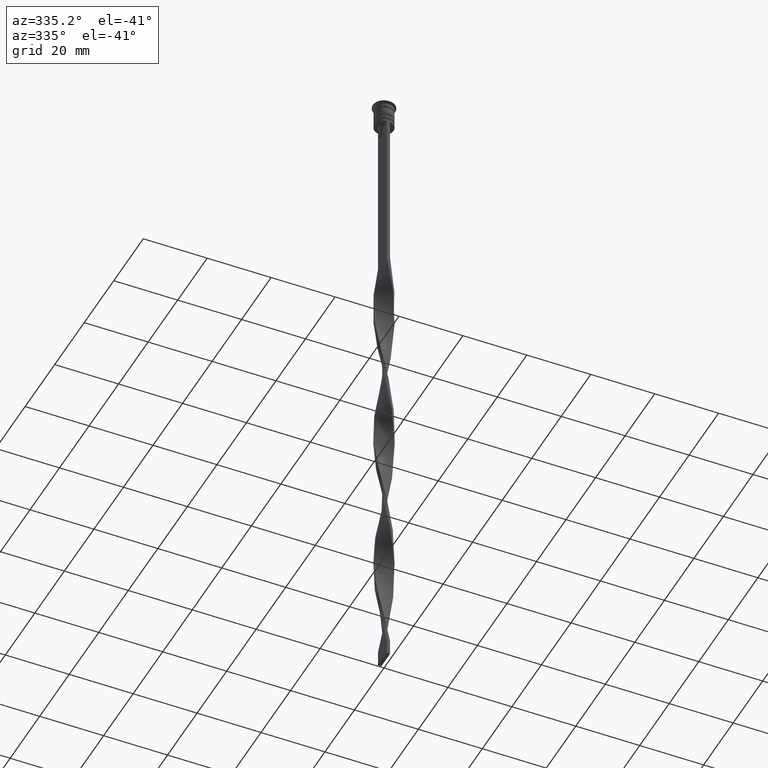
[diagram: clean part render]
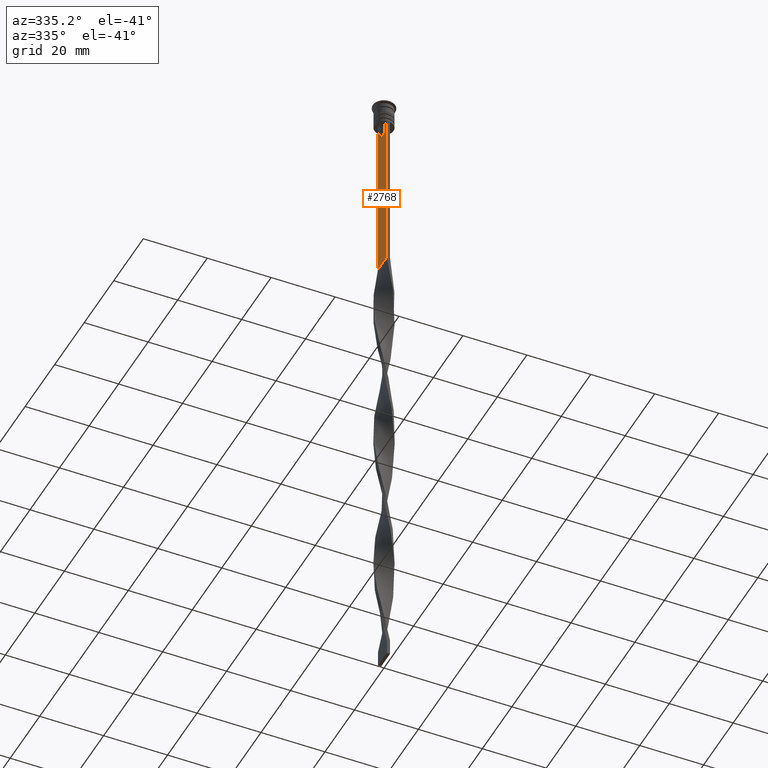
[diagram: same view with one face highlighted and labeled with its STEP entity id]
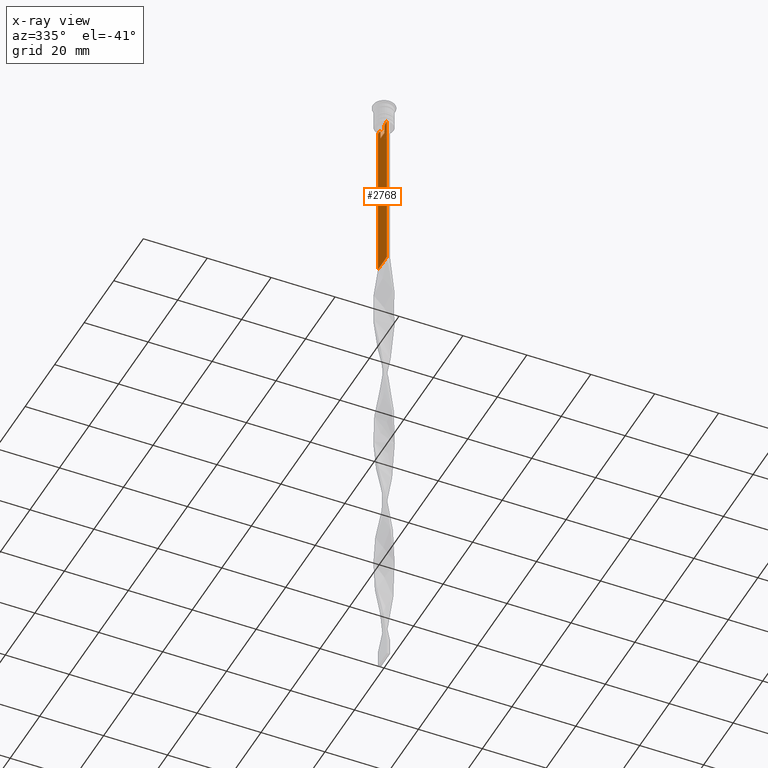
[diagram: x-ray of the same camera — body ghosted, the highlighted face saturated]
A machine part, auxiliary view. The second image highlights one B-rep face of the part: STEP entity #2768.
The next image is the same camera in x-ray: the body ghosted, the highlighted face saturated — about 0% of this face is hidden behind the body in this view.
In plain terms, the highlighted planar face has unit normal (-1, 0, 0).
Its self-contained STEP definition (entity closure, byte-faithful):
#13 = EDGE_CURVE ( 'NONE', #152, #3403, #2100, .T. ) ;
#27 = ORIENTED_EDGE ( 'NONE', *, *, #690, .F. ) ;
#32 = VECTOR ( 'NONE', #1371, 1000.000000000000000 ) ;
#92 = CARTESIAN_POINT ( 'NONE',  ( -0.5000000000000001110, 3.000000000000000000, -58.50000000000000000 ) ) ;
#152 = VERTEX_POINT ( 'NONE', #542 ) ;
#168 = CARTESIAN_POINT ( 'NONE',  ( -0.5000000000000001110, -3.000000000000000000, -7.500000000000000000 ) ) ;
#191 = VECTOR ( 'NONE', #637, 1000.000000000000000 ) ;
#220 = LINE ( 'NONE', #1954, #32 ) ;
#280 = DIRECTION ( 'NONE',  ( -0.000000000000000000, -0.000000000000000000, 1.000000000000000000 ) ) ;
#340 = EDGE_CURVE ( 'NONE', #1937, #1927, #3247, .T. ) ;
#386 = VECTOR ( 'NONE', #2576, 1000.000000000000000 ) ;
#388 = VECTOR ( 'NONE', #3270, 1000.000000000000000 ) ;
#414 = ORIENTED_EDGE ( 'NONE', *, *, #881, .F. ) ;
#427 = EDGE_LOOP ( 'NONE', ( #3680, #461, #852, #2787, #3005, #2536, #27, #3703, #414, #1494, #918, #3365 ) ) ;
#441 = DIRECTION ( 'NONE',  ( 0.000000000000000000, -1.000000000000000000, 0.000000000000000000 ) ) ;
#461 = ORIENTED_EDGE ( 'NONE', *, *, #1037, .F. ) ;
#480 = LINE ( 'NONE', #1028, #2305 ) ;
#481 = CARTESIAN_POINT ( 'NONE',  ( -0.5000000000000001110, -1.659011726860414093, -7.667884880598472286 ) ) ;
#538 = EDGE_CURVE ( 'NONE', #3403, #2947, #480, .T. ) ;
#542 = CARTESIAN_POINT ( 'NONE',  ( -0.5000000000000001110, 1.833030277982335532, -7.500000000000000000 ) ) ;
#637 = DIRECTION ( 'NONE',  ( 0.000000000000000000, 0.000000000000000000, -1.000000000000000000 ) ) ;
#690 = EDGE_CURVE ( 'NONE', #1698, #1590, #3396, .T. ) ;
#749 = LINE ( 'NONE', #1872, #1838 ) ;
#771 = VERTEX_POINT ( 'NONE', #795 ) ;
#795 = CARTESIAN_POINT ( 'NONE',  ( -0.5000000000000001110, -1.307669683062199217, -8.000000000000000000 ) ) ;
#852 = ORIENTED_EDGE ( 'NONE', *, *, #1595, .F. ) ;
#869 = VECTOR ( 'NONE', #3651, 1000.000000000000000 ) ;
#871 = VECTOR ( 'NONE', #1154, 1000.000000000000000 ) ;
#881 = EDGE_CURVE ( 'NONE', #771, #1372, #1400, .T. ) ;
#918 = ORIENTED_EDGE ( 'NONE', *, *, #2335, .F. ) ;
#928 = PLANE ( 'NONE',  #2734 ) ;
#953 = CARTESIAN_POINT ( 'NONE',  ( -0.5000000000000001110, 1.307669683062199217, -8.000000000000000000 ) ) ;
#1028 = CARTESIAN_POINT ( 'NONE',  ( -0.5000000000000001110, 1.307669683062199217, 0.000000000000000000 ) ) ;
#1037 = EDGE_CURVE ( 'NONE', #3150, #152, #3042, .T. ) ;
#1049 = CARTESIAN_POINT ( 'NONE',  ( -0.5000000000000001110, 3.000000000000000000, -7.500000000000000000 ) ) ;
#1084 = CARTESIAN_POINT ( 'NONE',  ( -0.5000000000000001110, -1.484307477388859153, -7.835011508197190722 ) ) ;
#1154 = DIRECTION ( 'NONE',  ( 0.000000000000000000, -1.000000000000000000, 0.000000000000000000 ) ) ;
#1195 = EDGE_CURVE ( 'NONE', #1370, #1927, #3325, .T. ) ;
#1213 = VECTOR ( 'NONE', #441, 1000.000000000000000 ) ;
#1282 = CARTESIAN_POINT ( 'NONE',  ( -0.5000000000000001110, -3.000000000000000000, -7.500000000000000000 ) ) ;
#1315 = CARTESIAN_POINT ( 'NONE',  ( -0.5000000000000001110, 2.856571371417139904, -7.500000000000000000 ) ) ;
#1345 = DIRECTION ( 'NONE',  ( 0.000000000000000000, 0.000000000000000000, -1.000000000000000000 ) ) ;
#1351 = EDGE_CURVE ( 'NONE', #3619, #771, #3500, .T. ) ;
#1370 = VERTEX_POINT ( 'NONE', #3730 ) ;
#1371 = DIRECTION ( 'NONE',  ( 0.000000000000000000, -1.000000000000000000, 0.000000000000000000 ) ) ;
#1372 = VERTEX_POINT ( 'NONE', #2873 ) ;
#1400 = B_SPLINE_CURVE_WITH_KNOTS ( 'NONE', 3,
 ( #3682, #1084, #481, #1618 ),
 .UNSPECIFIED., .F., .F.,
 ( 4, 4 ),
 ( 0.007225659348748070081, 0.007950554640278040958 ),
 .UNSPECIFIED. ) ;
#1407 = CARTESIAN_POINT ( 'NONE',  ( -0.5000000000000001110, -3.000000000000000000, -7.500000000000000000 ) ) ;
#1494 = ORIENTED_EDGE ( 'NONE', *, *, #1351, .F. ) ;
#1590 = VERTEX_POINT ( 'NONE', #1282 ) ;
#1595 = EDGE_CURVE ( 'NONE', #1937, #3150, #3546, .T. ) ;
#1618 = CARTESIAN_POINT ( 'NONE',  ( -0.5000000000000001110, -1.833030277982335532, -7.500000000000000000 ) ) ;
#1698 = VERTEX_POINT ( 'NONE', #1893 ) ;
#1700 = CARTESIAN_POINT ( 'NONE',  ( -0.5000000000000001110, -1.307669683062199217, 0.000000000000000000 ) ) ;
#1743 = CARTESIAN_POINT ( 'NONE',  ( -0.5000000000000001110, 1.484355510416485391, -7.834966642958598015 ) ) ;
#1775 = DIRECTION ( 'NONE',  ( -1.000000000000000000, 0.000000000000000000, 0.000000000000000000 ) ) ;
#1838 = VECTOR ( 'NONE', #2175, 1000.000000000000000 ) ;
#1872 = CARTESIAN_POINT ( 'NONE',  ( -0.5000000000000001110, -3.000000000000000000, -1.417237469701779329 ) ) ;
#1893 = CARTESIAN_POINT ( 'NONE',  ( -0.5000000000000001110, -2.856571371417139904, -7.500000000000000000 ) ) ;
#1927 = VERTEX_POINT ( 'NONE', #92 ) ;
#1937 = VERTEX_POINT ( 'NONE', #1049 ) ;
#1954 = CARTESIAN_POINT ( 'NONE',  ( -0.5000000000000001110, -3.000000000000000000, -7.500000000000000000 ) ) ;
#1992 = CARTESIAN_POINT ( 'NONE',  ( -0.5000000000000001110, 1.307669683062199217, -8.000000000000000000 ) ) ;
#2033 = LINE ( 'NONE', #2879, #871 ) ;
#2038 = DIRECTION ( 'NONE',  ( 0.000000000000000000, 0.000000000000000000, 1.000000000000000000 ) ) ;
#2100 = B_SPLINE_CURVE_WITH_KNOTS ( 'NONE', 3,
 ( #3466, #3156, #1743, #1992 ),
 .UNSPECIFIED., .F., .F.,
 ( 4, 4 ),
 ( 0.003278537493109840491, 0.004003794023484932504 ),
 .UNSPECIFIED. ) ;
#2175 = DIRECTION ( 'NONE',  ( 0.000000000000000000, 0.000000000000000000, -1.000000000000000000 ) ) ;
#2305 = VECTOR ( 'NONE', #1345, 1000.000000000000000 ) ;
#2335 = EDGE_CURVE ( 'NONE', #2947, #3619, #2033, .T. ) ;
#2479 = CARTESIAN_POINT ( 'NONE',  ( -0.5000000000000001110, 1.307669683062199217, -10.49999999999999822 ) ) ;
#2489 = CARTESIAN_POINT ( 'NONE',  ( -0.5000000000000001110, -3.000000000000000000, -58.50000000000000000 ) ) ;
#2536 = ORIENTED_EDGE ( 'NONE', *, *, #3541, .F. ) ;
#2576 = DIRECTION ( 'NONE',  ( 0.000000000000000000, -1.000000000000000000, 0.000000000000000000 ) ) ;
#2734 = AXIS2_PLACEMENT_3D ( 'NONE', #3258, #1775, #2038 ) ;
#2768 = ADVANCED_FACE ( 'NONE', ( #3200 ), #928, .T. ) ;
#2787 = ORIENTED_EDGE ( 'NONE', *, *, #340, .T. ) ;
#2873 = CARTESIAN_POINT ( 'NONE',  ( -0.5000000000000001110, -1.833030277982335532, -7.500000000000000000 ) ) ;
#2879 = CARTESIAN_POINT ( 'NONE',  ( -0.5000000000000001110, 1.399999999999997691, -10.49999999999999822 ) ) ;
#2947 = VERTEX_POINT ( 'NONE', #2479 ) ;
#3005 = ORIENTED_EDGE ( 'NONE', *, *, #1195, .F. ) ;
#3042 = LINE ( 'NONE', #168, #1213 ) ;
#3068 = CARTESIAN_POINT ( 'NONE',  ( -0.5000000000000001110, -1.307669683062199217, -10.49999999999999822 ) ) ;
#3074 = VECTOR ( 'NONE', #280, 1000.000000000000000 ) ;
#3150 = VERTEX_POINT ( 'NONE', #1315 ) ;
#3156 = CARTESIAN_POINT ( 'NONE',  ( -0.5000000000000001110, 1.659046061654642523, -7.667851756010361619 ) ) ;
#3200 = FACE_OUTER_BOUND ( 'NONE', #427, .T. ) ;
#3247 = LINE ( 'NONE', #3262, #191 ) ;
#3258 = CARTESIAN_POINT ( 'NONE',  ( -0.5000000000000001110, -3.000000000000000000, -1.417237469701779329 ) ) ;
#3262 = CARTESIAN_POINT ( 'NONE',  ( -0.5000000000000001110, 3.000000000000000000, -1.417237469701779329 ) ) ;
#3270 = DIRECTION ( 'NONE',  ( 0.000000000000000000, 1.000000000000000000, 0.000000000000000000 ) ) ;
#3302 = EDGE_CURVE ( 'NONE', #1372, #1698, #220, .T. ) ;
#3325 = LINE ( 'NONE', #2489, #388 ) ;
#3365 = ORIENTED_EDGE ( 'NONE', *, *, #538, .F. ) ;
#3396 = LINE ( 'NONE', #1407, #386 ) ;
#3403 = VERTEX_POINT ( 'NONE', #953 ) ;
#3466 = CARTESIAN_POINT ( 'NONE',  ( -0.5000000000000001110, 1.833030277982335532, -7.500000000000000000 ) ) ;
#3500 = LINE ( 'NONE', #1700, #3074 ) ;
#3528 = CARTESIAN_POINT ( 'NONE',  ( -0.5000000000000001110, -3.000000000000000000, -7.500000000000000000 ) ) ;
#3541 = EDGE_CURVE ( 'NONE', #1590, #1370, #749, .T. ) ;
#3546 = LINE ( 'NONE', #3528, #869 ) ;
#3619 = VERTEX_POINT ( 'NONE', #3068 ) ;
#3651 = DIRECTION ( 'NONE',  ( 0.000000000000000000, -1.000000000000000000, 0.000000000000000000 ) ) ;
#3680 = ORIENTED_EDGE ( 'NONE', *, *, #13, .F. ) ;
#3682 = CARTESIAN_POINT ( 'NONE',  ( -0.5000000000000001110, -1.307669683062199217, -8.000000000000000000 ) ) ;
#3703 = ORIENTED_EDGE ( 'NONE', *, *, #3302, .F. ) ;
#3730 = CARTESIAN_POINT ( 'NONE',  ( -0.5000000000000001110, -3.000000000000000000, -58.50000000000000000 ) ) ;